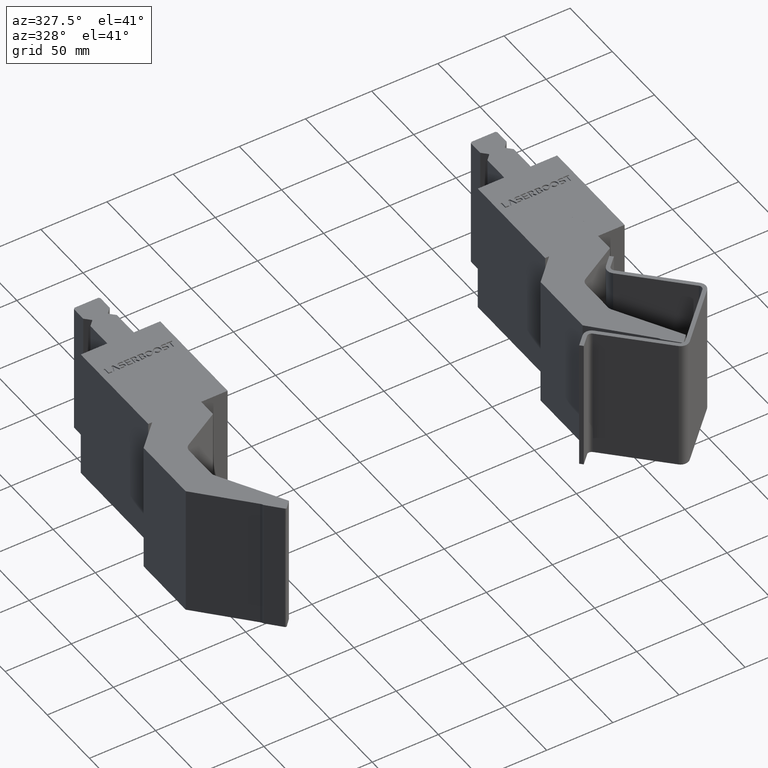
[diagram: clean part render]
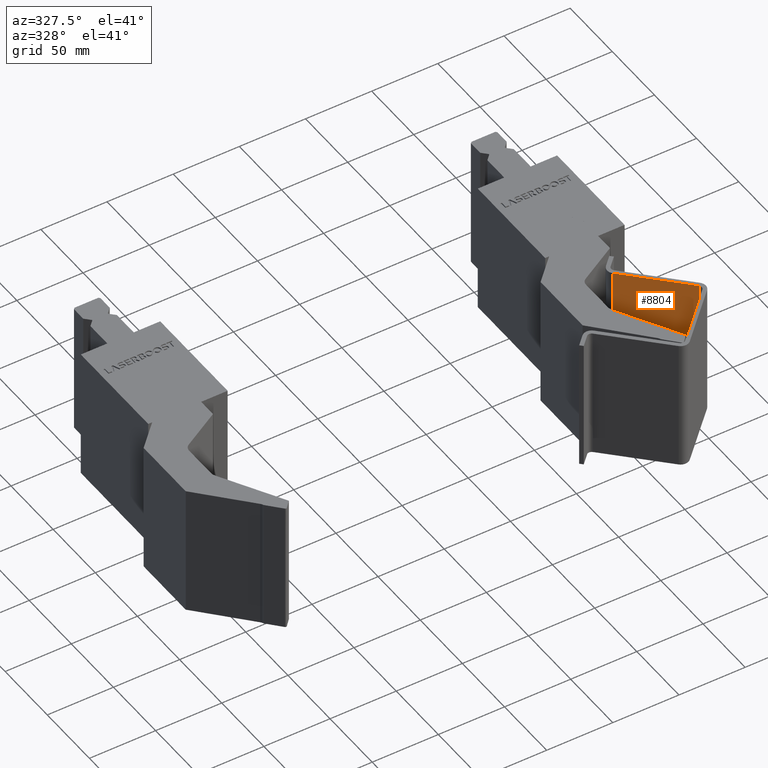
[diagram: same view with one face highlighted and labeled with its STEP entity id]
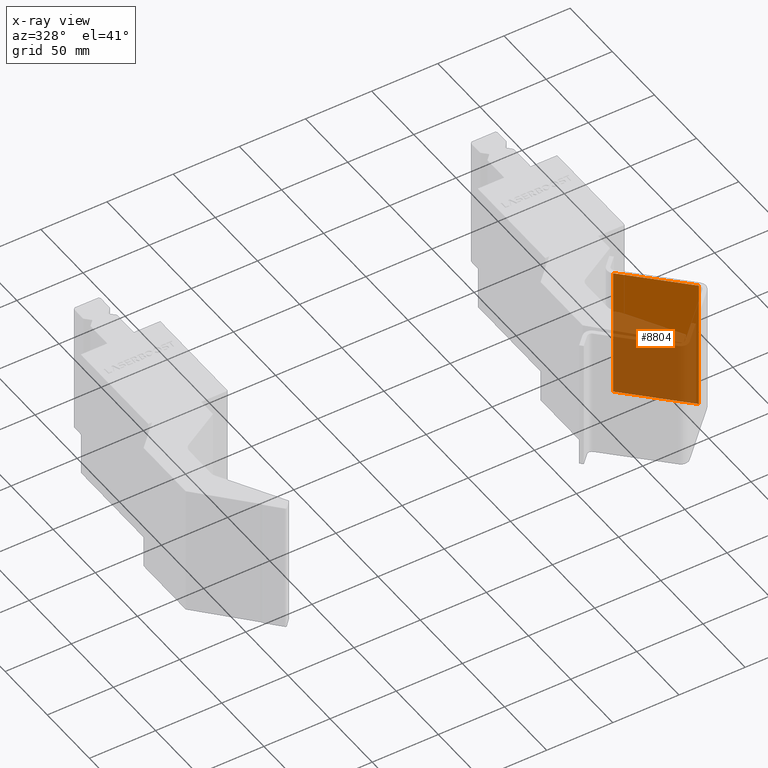
[diagram: x-ray of the same camera — body ghosted, the highlighted face saturated]
A machine part, auxiliary view. The second image highlights one B-rep face of the part: STEP entity #8804.
The next image is the same camera in x-ray: the body ghosted, the highlighted face saturated — about 61% of this face is hidden behind the body in this view.
In plain terms, the highlighted planar face has unit normal (0.7071, 0.7071, 0).
Its self-contained STEP definition (entity closure, byte-faithful):
#8138=DIRECTION('',(0.E0,1.E0,0.E0));
#8139=VECTOR('',#8138,5.6E1);
#8140=CARTESIAN_POINT('',(0.E0,-5.9E1,-6.E1));
#8141=LINE('',#8140,#8139);
#8167=DIRECTION('',(1.E0,0.E0,0.E0));
#8168=VECTOR('',#8167,1.E2);
#8169=CARTESIAN_POINT('',(0.E0,-3.E0,-6.E1));
#8170=LINE('',#8169,#8168);
#8238=DIRECTION('',(0.E0,1.E0,0.E0));
#8239=VECTOR('',#8238,5.6E1);
#8240=CARTESIAN_POINT('',(1.E2,-5.9E1,-6.E1));
#8241=LINE('',#8240,#8239);
#8296=DIRECTION('',(1.E0,0.E0,0.E0));
#8297=VECTOR('',#8296,1.E2);
#8298=CARTESIAN_POINT('',(0.E0,-5.9E1,-6.E1));
#8299=LINE('',#8298,#8297);
#8673=CARTESIAN_POINT('',(0.E0,-3.E0,-6.E1));
#8674=CARTESIAN_POINT('',(1.E2,-3.E0,-6.E1));
#8675=VERTEX_POINT('',#8673);
#8676=VERTEX_POINT('',#8674);
#8677=CARTESIAN_POINT('',(0.E0,-5.9E1,-6.E1));
#8678=CARTESIAN_POINT('',(1.E2,-5.9E1,-6.E1));
#8679=VERTEX_POINT('',#8677);
#8680=VERTEX_POINT('',#8678);
#8790=CARTESIAN_POINT('',(0.E0,-6.5E1,-6.E1));
#8791=DIRECTION('',(0.E0,0.E0,-1.E0));
#8792=DIRECTION('',(0.E0,1.E0,0.E0));
#8793=AXIS2_PLACEMENT_3D('',#8790,#8791,#8792);
#8794=PLANE('',#8793);
#8795=ORIENTED_EDGE('',*,*,#8782,.T.);
#8797=ORIENTED_EDGE('',*,*,#8796,.T.);
#8799=ORIENTED_EDGE('',*,*,#8798,.F.);
#8801=ORIENTED_EDGE('',*,*,#8800,.F.);
#8802=EDGE_LOOP('',(#8795,#8797,#8799,#8801));
#8803=FACE_OUTER_BOUND('',#8802,.F.);
#8804=ADVANCED_FACE('',(#8803),#8794,.F.);
#8782=EDGE_CURVE('',#8679,#8675,#8141,.T.);
#8796=EDGE_CURVE('',#8675,#8676,#8170,.T.);
#8798=EDGE_CURVE('',#8680,#8676,#8241,.T.);
#8800=EDGE_CURVE('',#8679,#8680,#8299,.T.);